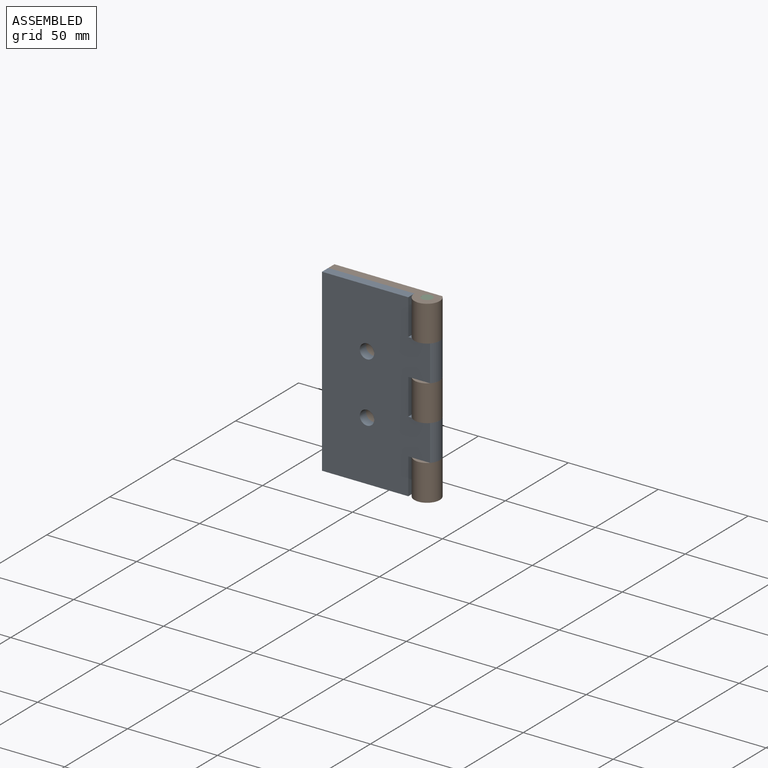
[diagram: assembled view]
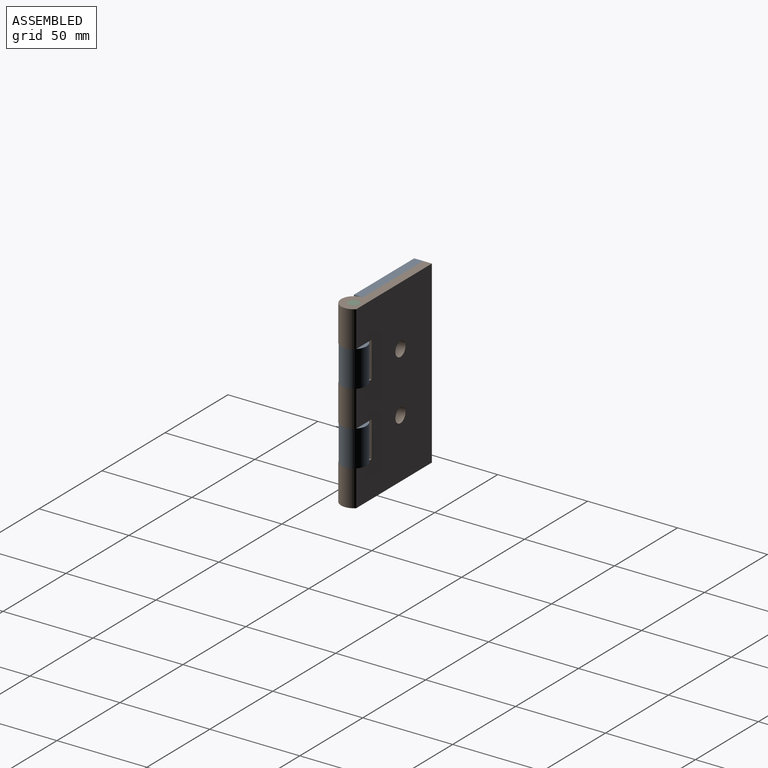
[diagram: assembled view, second angle]
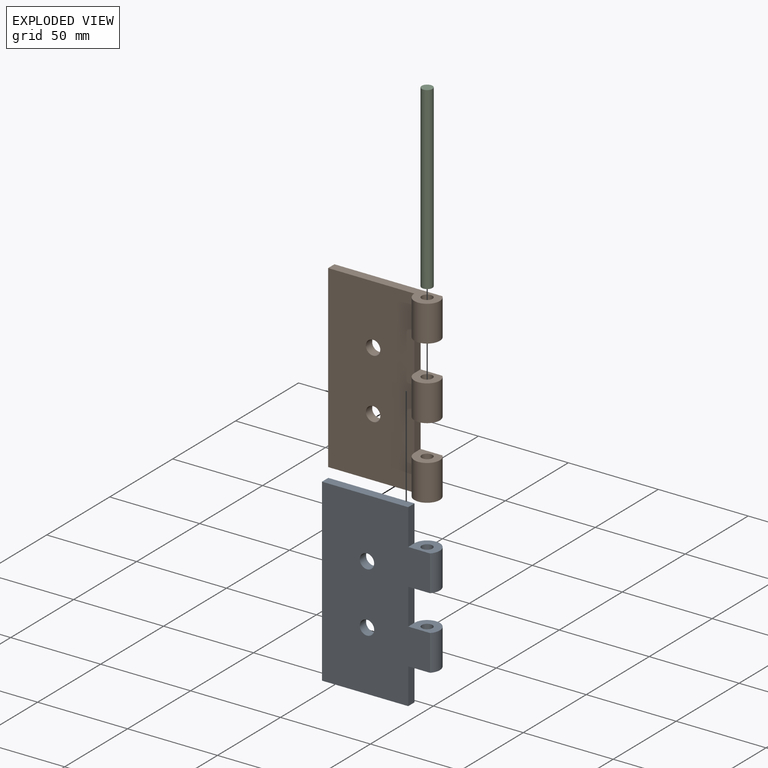
[diagram: exploded view]
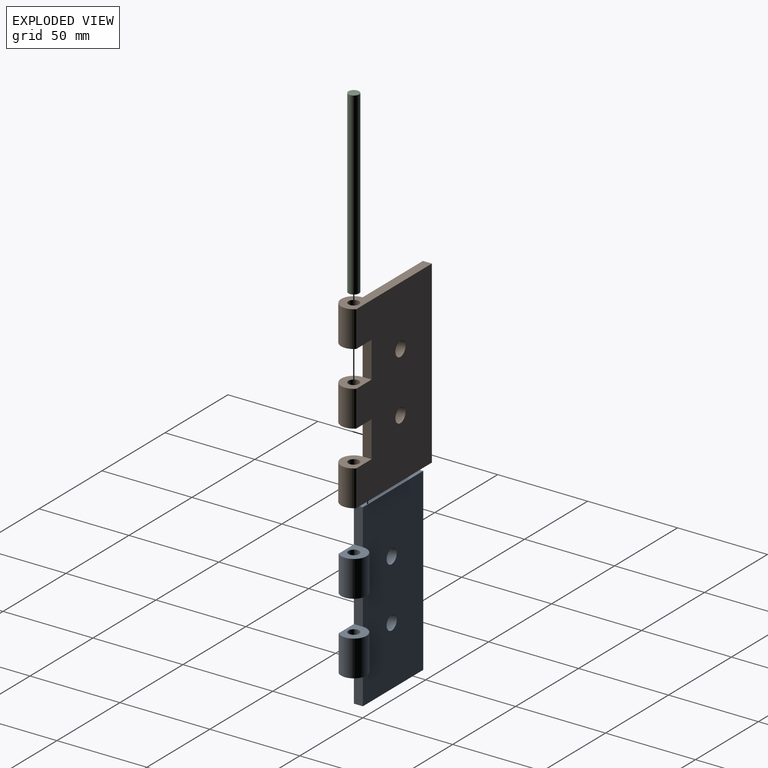
[diagram: exploded view, second angle]
ASSEMBLY  parts=3 mates=2
PART A: 18 faces, bbox 62.1x12x100 mm
  f0: plane 100x47.94mm, normal (0,-1,0), area 4693.2mm2, adj f2,f3,f4,f5,f6,f9,f13,f15
  f1: plane 100x60.06mm, normal (0,1,0), area 5178.2mm2, adj f2,f3,f4,f5,f6,f8,f9,f10
  f2: plane 47.94x5mm, normal (0,0,1), area 239.7mm2, adj f0,f1,f3,f17
  f3: plane 100x5mm, normal (1,0,0), area 500mm2, adj f0,f1,f2,f4
  f4: plane 47.94x5mm, normal (0,0,-1), area 239.7mm2, adj f0,f1,f3,f15
  f5: cylinder r=4mm len=8mm, axis (0,-1,0), area 125.7mm2, adj f0,f1
  f6: cylinder r=4mm len=8mm, axis (0,-1,0), area 125.7mm2, adj f0,f1
  f7: cylinder r=3mm len=20mm, axis (0,0,-1), area 377mm2, adj f8,f10
  f8: plane 14.13x11.99mm, normal (0,0,1), area 116.6mm2, adj f1,f7,f9,f17
  f9: cylinder r=7.06mm len=20mm, axis (0,0,-1), area 551.4mm2, adj f0,f1,f8,f10
  f10: plane 14.13x11.99mm, normal (0,0,-1), area 116.6mm2, adj f1,f7,f9,f16
  f11: cylinder r=3mm len=20mm, axis (0,0,-1), area 377mm2, adj f12,f14
  f12: plane 14.13x11.99mm, normal (0,0,1), area 116.6mm2, adj f1,f11,f13,f16
  f13: cylinder r=7.06mm len=20mm, axis (0,0,-1), area 551.4mm2, adj f0,f1,f12,f14
  f14: plane 14.13x11.99mm, normal (0,0,-1), area 116.6mm2, adj f1,f11,f13,f15
  f15: plane 20x5mm, normal (-1,0,0), area 100mm2, adj f0,f1,f4,f14
  f16: plane 20x5mm, normal (-1,0,0), area 100mm2, adj f0,f1,f10,f12
  f17: plane 20x5mm, normal (-1,0,0), area 100mm2, adj f0,f1,f2,f8
PART B: 19 faces, bbox 62.1x12x100 mm
  f0: plane 100x47.94mm, normal (0,-1,0), area 4693.2mm2, adj f2,f3,f4,f5,f6,f8,f12,f14
  f1: plane 100x60.06mm, normal (0,1,0), area 5420.7mm2, adj f2,f3,f4,f5,f6,f8,f9,f11
  f2: plane 62.06x11.99mm, normal (0,0,1), area 356.3mm2, adj f0,f1,f3,f7,f8
  f3: plane 100x5mm, normal (-1,0,0), area 500mm2, adj f0,f1,f2,f4
  f4: plane 62.06x11.99mm, normal (0,0,-1), area 356.3mm2, adj f0,f1,f3,f14,f15
  f5: cylinder r=4mm len=8mm, axis (0,-1,0), area 125.7mm2, adj f0,f1
  f6: cylinder r=4mm len=8mm, axis (0,-1,0), area 125.7mm2, adj f0,f1
  f7: cylinder r=3mm len=20mm, axis (0,0,-1), area 377mm2, adj f2,f9
  f8: cylinder r=7.06mm len=20mm, axis (0,0,-1), area 551.4mm2, adj f0,f1,f2,f9
  f9: plane 14.13x11.99mm, normal (0,0,-1), area 116.6mm2, adj f1,f7,f8,f17
  f10: cylinder r=3mm len=20mm, axis (0,0,-1), area 377mm2, adj f11,f13
  f11: plane 14.13x11.99mm, normal (0,0,1), area 116.6mm2, adj f1,f10,f12,f17
  f12: cylinder r=7.06mm len=20mm, axis (0,0,-1), area 551.4mm2, adj f0,f1,f11,f13
  f13: plane 14.13x11.99mm, normal (0,0,-1), area 116.6mm2, adj f1,f10,f12,f18
  f14: cylinder r=7.06mm len=20mm, axis (0,0,-1), area 551.4mm2, adj f0,f1,f4,f16
  f15: cylinder r=3mm len=20mm, axis (0,0,-1), area 377mm2, adj f4,f16
  f16: plane 14.13x11.99mm, normal (0,0,1), area 116.6mm2, adj f1,f14,f15,f18
  f17: plane 20x5mm, normal (1,0,0), area 100mm2, adj f0,f1,f9,f11
  f18: plane 20x5mm, normal (1,0,0), area 100mm2, adj f0,f1,f13,f16
PART C: 3 faces, bbox 6x6x100 mm
  f0: plane 6x6mm, normal (0,0,-1), area 28.3mm2, adj f2
  f1: plane 6x6mm, normal (0,0,1), area 28.3mm2, adj f2
  f2: cylinder r=3mm len=100mm, axis (0,0,1), area 1885mm2, adj f0,f1
PLACE A rot(axis=(0,0,1),180deg) t=(0,-9.85,0)mm
PLACE B at identity fixed
PLACE C at identity
MATE fastened B.f7 <-> C.f2  axis (0,0,1) through (0,-4.93,50)mm
MATE revolute A.f7 <-> B.f7  axis (0,0,1) through (0,-4.93,30)mm
